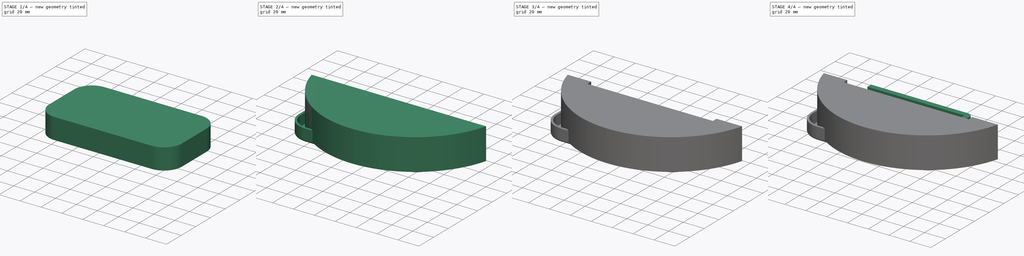
[diagram: build sequence overview — one tinted view per stage of 4, left to right]
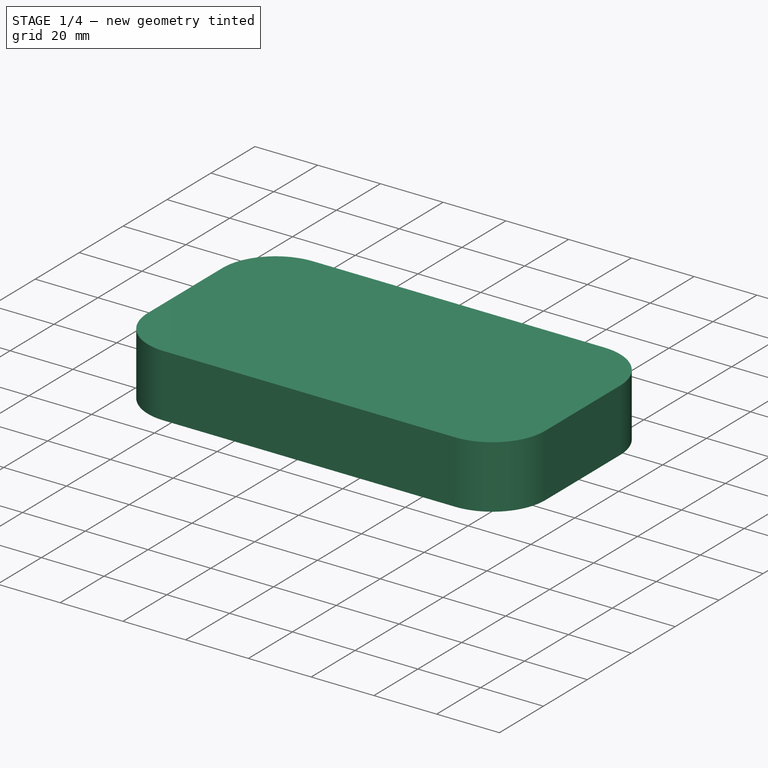
[diagram: stage 1 of 4 — iso view after this stage's code; geometry added in this stage tinted green]
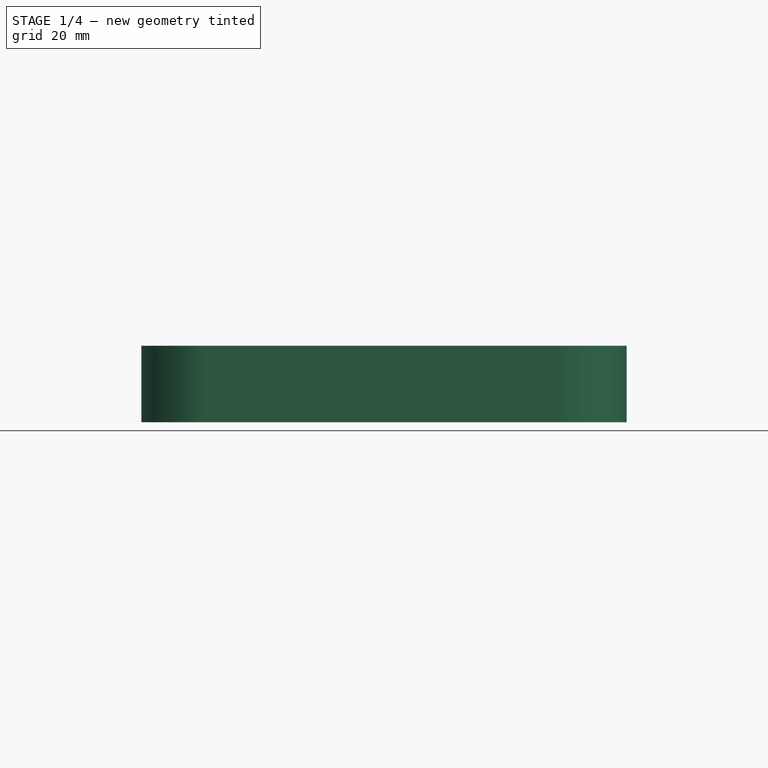
[diagram: stage 1 of 4 — front view after this stage's code; geometry added in this stage tinted green]
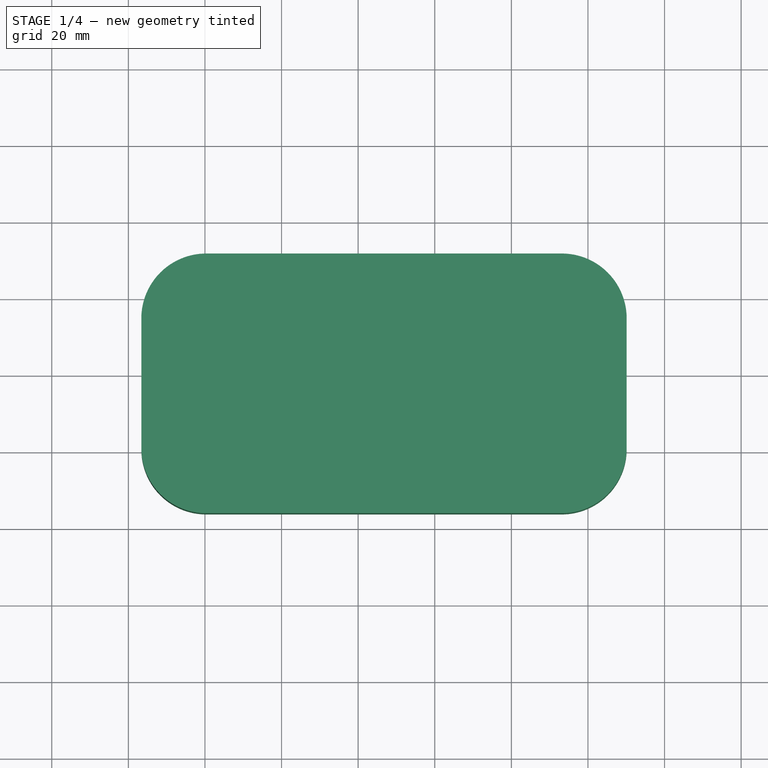
[diagram: stage 1 of 4 — top view after this stage's code; geometry added in this stage tinted green]
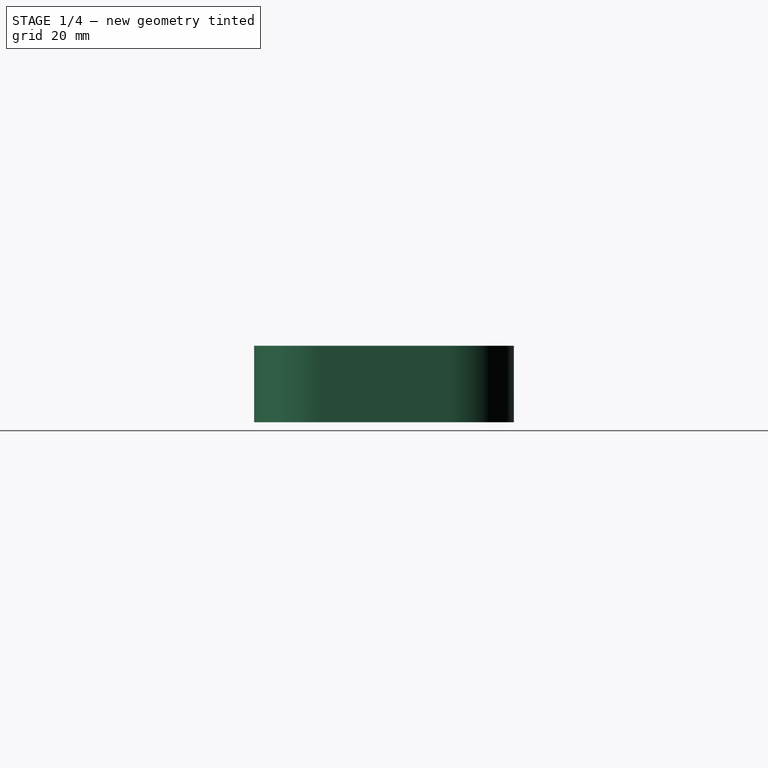
[diagram: stage 1 of 4 — right view after this stage's code; geometry added in this stage tinted green]
FCSTD DOCUMENT  (FreeCAD 0.21RUnknown)
Label: part27
License: All rights reserved
LicenseURL: http://en.wikipedia.org/wiki/All_rights_reserved
objects: PartDesign::Pad×7, Sketcher::SketchObject×5, PartDesign::Thickness×4, PartDesign::Body×4, PartDesign::Pocket×1, PartDesign::SubShapeBinder×1
note: 34 computed .brp shape members not serialized (recipe doc carries the construction recipe); baked Part::Feature solids carry a one-line shape summary decoded from their .brp

FEATURE [PartDesign::Body] Body001
  Group = -> [Sketch001,Pad002,Sketch002,Pocket,Sketch003,Pad003,Thickness001]
  Origin = -> Origin001
  Tip = -> Thickness001
FEATURE [Sketcher::SketchObject] Sketch004
  FullyConstrained = false
  MapMode = 5
  Support = -> [XY_Plane002]
  sketch-geometry (10):
    g0: ArcOfCircle CenterX=-39.6606 CenterY=14.7235 CenterZ=0 NormalX=0 NormalY=0 NormalZ=1 AngleXU=0 Radius=16.9513 StartAngle=1.5708 EndAngle=3.14159
    g1: LineSegment StartX=-39.6606 StartY=31.6748 StartZ=0 EndX=53.1625 EndY=31.6748 EndZ=0
    g2: ArcOfCircle CenterX=53.1625 CenterY=14.7235 CenterZ=0 NormalX=0 NormalY=0 NormalZ=1 AngleXU=0 Radius=16.9513 StartAngle=1e-16 EndAngle=1.5708
    g3: LineSegment StartX=70.1138 StartY=14.7235 StartZ=0 EndX=70.1138 EndY=-19.1792 EndZ=0
    g4: ArcOfCircle CenterX=53.1625 CenterY=-19.1792 CenterZ=0 NormalX=0 NormalY=0 NormalZ=1 AngleXU=0 Radius=16.9513 StartAngle=4.71239 EndAngle=6.28319
    g5: LineSegment StartX=53.1625 StartY=-36.1305 StartZ=0 EndX=-39.6606 EndY=-36.1305 EndZ=0
    g6: ArcOfCircle CenterX=-39.6606 CenterY=-19.1792 CenterZ=0 NormalX=0 NormalY=0 NormalZ=1 AngleXU=0 Radius=16.9513 StartAngle=3.14159 EndAngle=4.71239
    g7: LineSegment StartX=-56.612 StartY=-19.1792 StartZ=0 EndX=-56.612 EndY=14.7235 EndZ=0
    g8: GeomPoint X=-56.612 Y=31.6748 Z=0
    g9: GeomPoint X=70.1138 Y=-36.1305 Z=0
  constraints (19):
    c: Tangent(g0,g1) = 1.5708
    c: Tangent(g1,g2) = 1.5708
    c: Tangent(g2,g3) = 1.5708
    c: Tangent(g3,g4) = 1.5708
    c: Tangent(g4,g5) = 1.5708
    c: Tangent(g5,g6) = 1.5708
    c: Tangent(g6,g7) = 1.5708
    c: Tangent(g7,g0) = 1.5708
    c: Horizontal(g1)
    c: Horizontal(g5)
    c: Vertical(g3)
    c: Vertical(g7)
    c: Equal(g0,g2)
    c: Equal(g2,g4)
    c: Equal(g4,g6)
    c: PointOnObject(g8,g1)
    c: PointOnObject(g8,g7)
    c: PointOnObject(g9,g3)
    c: PointOnObject(g9,g5)
FEATURE [PartDesign::Pad] Pad004
  Direction = (0,0,1)
  Length = 20
  Length2 = 10
  Profile = -> Sketch004
  ReferenceAxis = -> Sketch004 [N_Axis]
  Type = 0
FEATURE [PartDesign::Thickness] Thickness002
  Base = -> Pad004 [Face9]
  BaseFeature = -> Pad004
  Intersection = false
  Join = 0
  Mode = 0
  Reversed = true
  SupportTransform = false
  Value = 2
FEATURE [PartDesign::Pad] Pad005
  BaseFeature = -> Thickness002
  Direction = (0,0,-1)
  Length = 2
  Length2 = 10
  Profile = -> Thickness002 [Face19]
  Type = 0
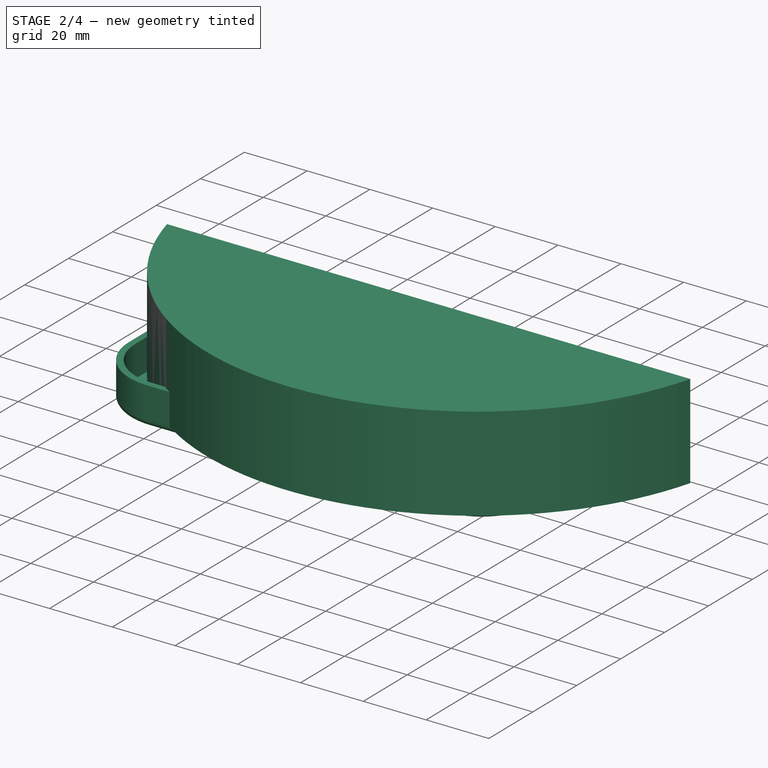
[diagram: stage 2 of 4 — iso view after this stage's code; geometry added in this stage tinted green]
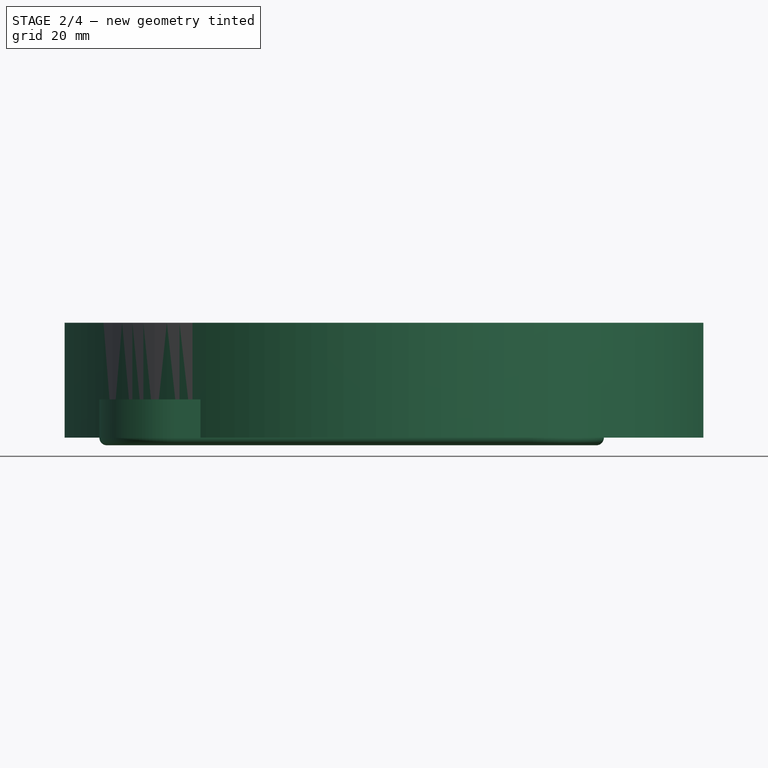
[diagram: stage 2 of 4 — front view after this stage's code; geometry added in this stage tinted green]
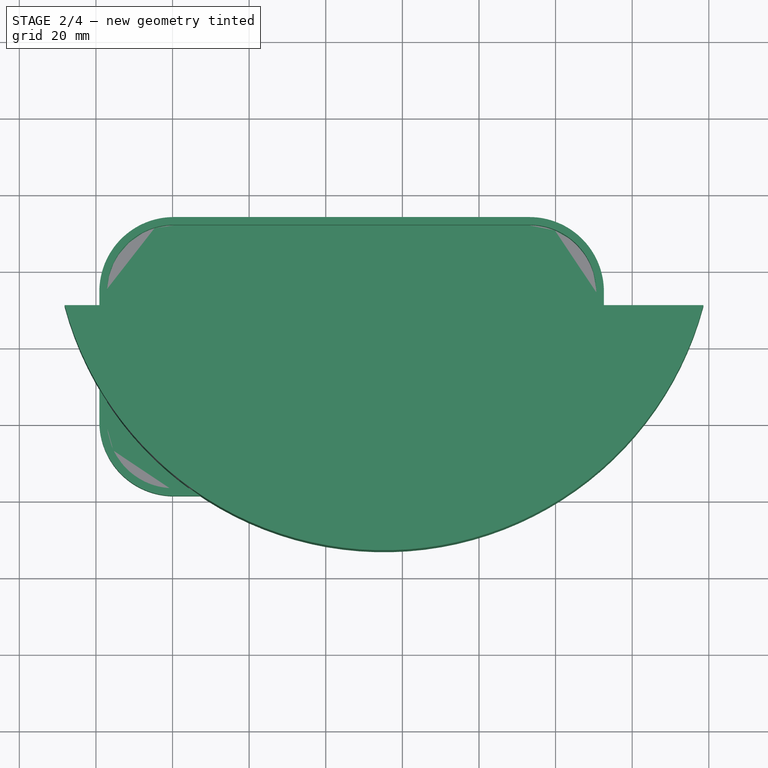
[diagram: stage 2 of 4 — top view after this stage's code; geometry added in this stage tinted green]
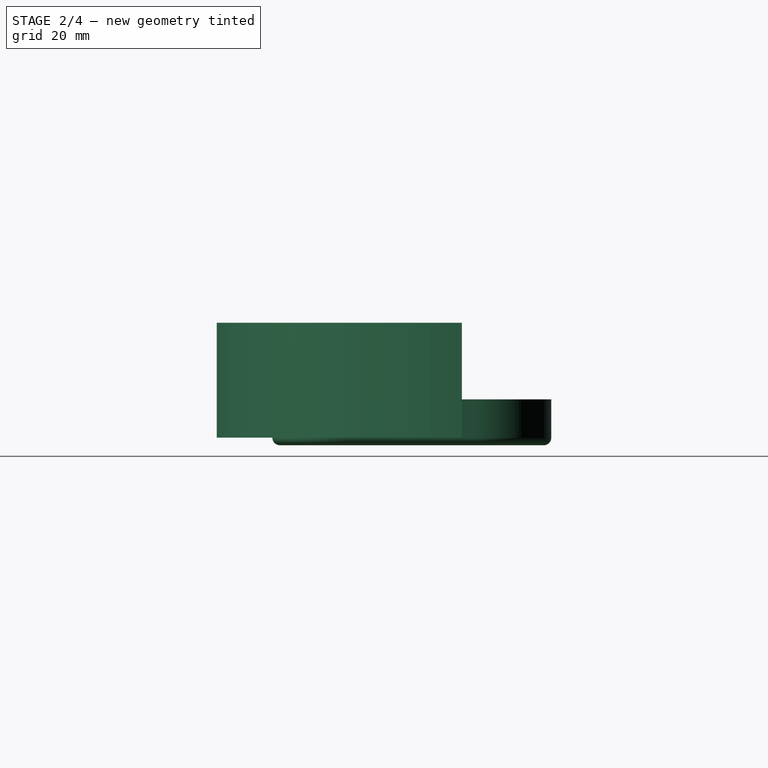
[diagram: stage 2 of 4 — right view after this stage's code; geometry added in this stage tinted green]
FEATURE [PartDesign::Body] Body
  Group = -> [Sketch,Pad,Thickness,Pad001]
  Origin = -> Origin
  Tip = -> Pad001
FEATURE [Sketcher::SketchObject] Sketch001
  FullyConstrained = false
  MapMode = 5
  Support = -> [XY_Plane001]
  sketch-geometry (2):
    g0: ArcOfCircle CenterX=15.2042 CenterY=33.144 CenterZ=0 NormalX=0 NormalY=0 NormalZ=1 AngleXU=0 Radius=86.3222 StartAngle=3.40304 EndAngle=6.02174
    g1: LineSegment StartX=-68.1844 StartY=10.8313 StartZ=0 EndX=98.5929 EndY=10.8313 EndZ=0
  constraints (3):
    c: Coincident(g1,g0)
    c: Coincident(g1,g0)
    c: Horizontal(g1)
FEATURE [PartDesign::Pad] Pad002
  Direction = (0,0,1)
  Length = 30
  Length2 = 10
  Profile = -> Sketch001
  ReferenceAxis = -> Sketch001 [N_Axis]
  Type = 0
FEATURE [PartDesign::Body] Body002  label="box lower"
  Group = -> [Sketch004,Pad004,Thickness002,Pad005]
  Origin = -> Origin002
  Tip = -> Pad005
FEATURE [PartDesign::SubShapeBinder] Binder
  BindCopyOnChange = 0
  BindMode = 0
  ClaimChildren = false
  Context = -> Body003 [Binder.]
  Fuse = false
  MakeFace = true
  Offset = 0.5
  OffsetFill = false
  OffsetIntersection = false
  OffsetJoinType = 0
  OffsetOpenResult = false
  PartialLoad = false
  Relative = true
  Support = -> [Body002[Pad004.Face9]]
  _Version = 2
FEATURE [PartDesign::Pad] Pad006
  Direction = (0,0,-1)
  Length = 10
  Length2 = 10
  Profile = -> Binder [Face1]
  Reversed = true
  Type = 0
FEATURE [PartDesign::Thickness] Thickness003
  Base = -> Pad006 [Face10]
  BaseFeature = -> Pad006
  Intersection = false
  Join = 0
  Mode = 0
  SupportTransform = false
  Value = 2
FEATURE [PartDesign::Body] Body003  label="box lid"
  Group = -> [Binder,Pad006,Thickness003]
  Origin = -> Origin003
  Tip = -> Thickness003
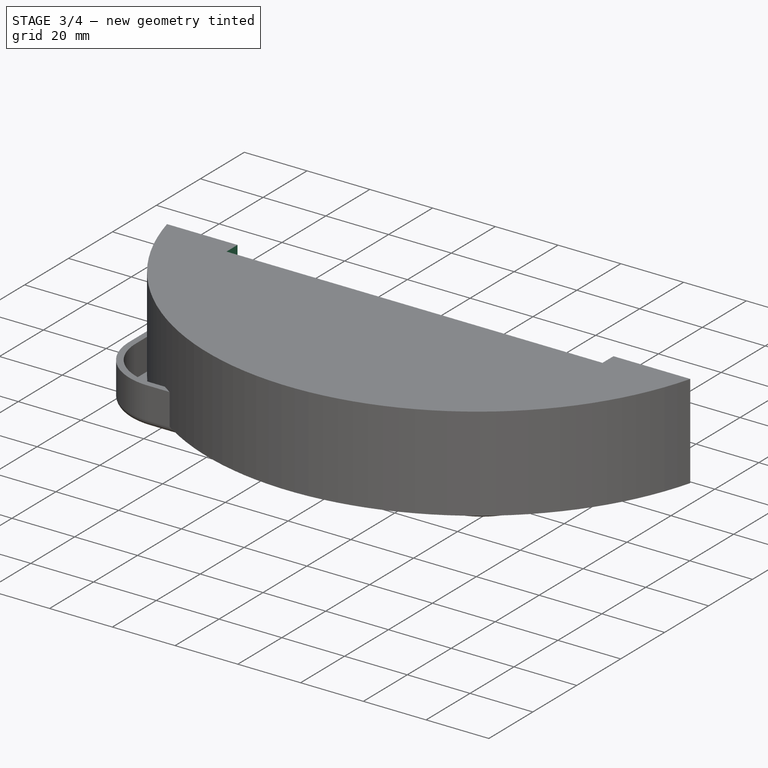
[diagram: stage 3 of 4 — iso view after this stage's code; geometry added in this stage tinted green]
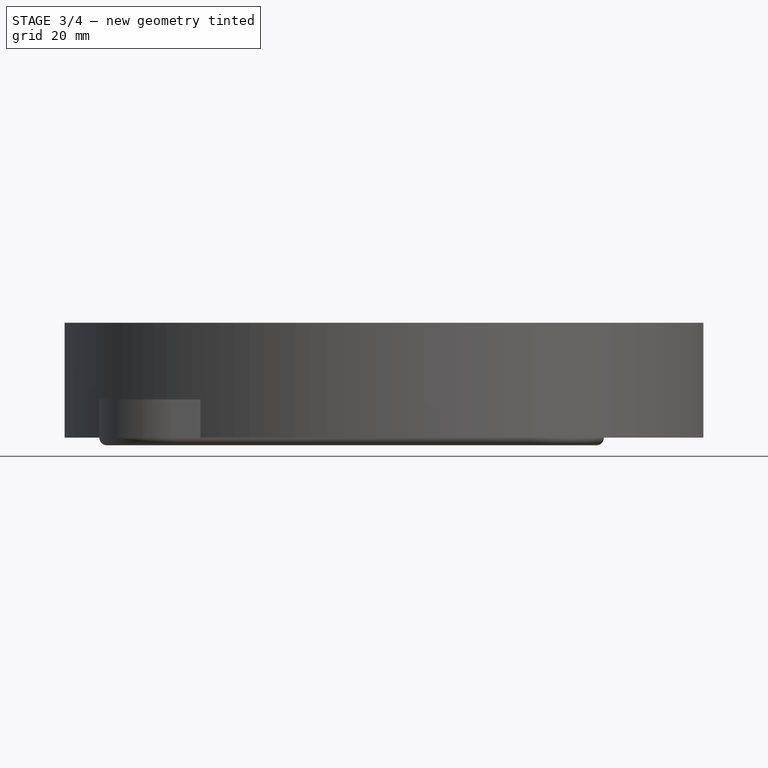
[diagram: stage 3 of 4 — front view after this stage's code; geometry added in this stage tinted green]
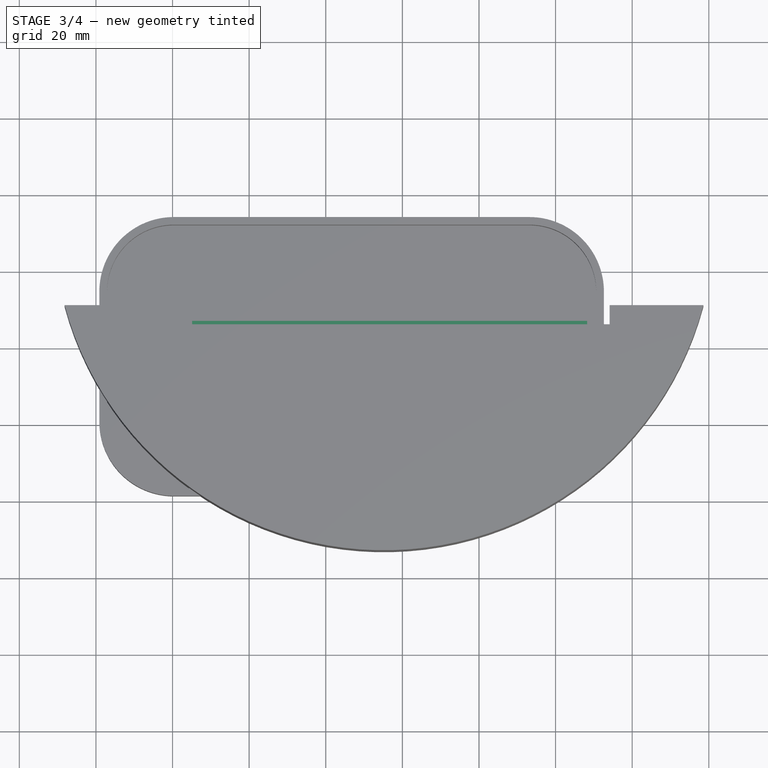
[diagram: stage 3 of 4 — top view after this stage's code; geometry added in this stage tinted green]
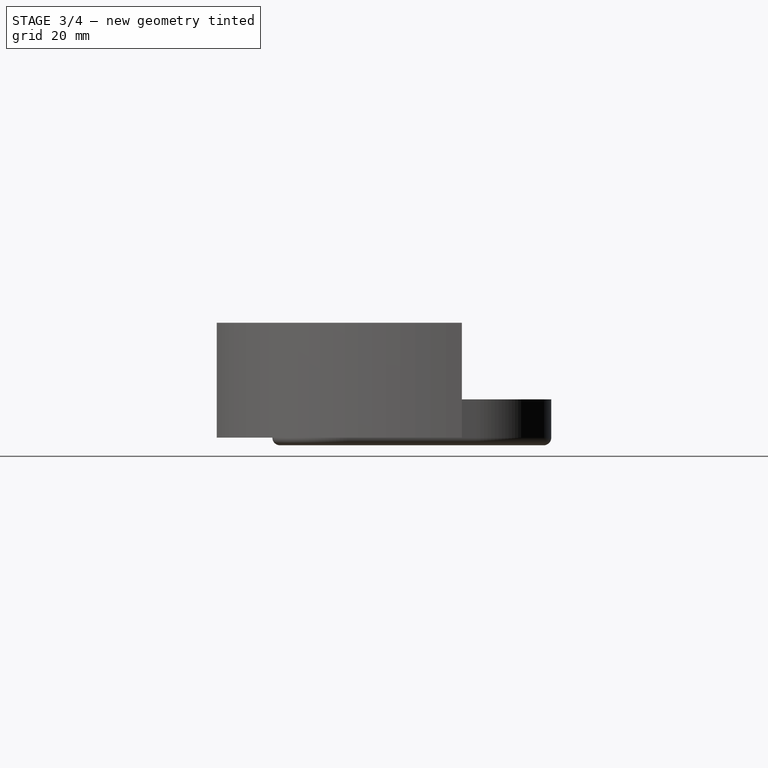
[diagram: stage 3 of 4 — right view after this stage's code; geometry added in this stage tinted green]
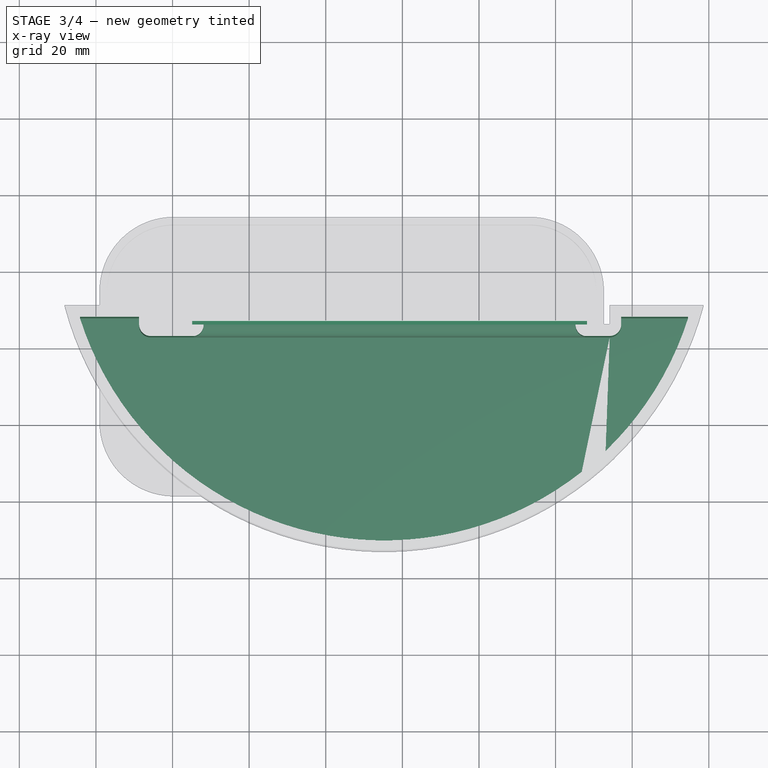
[diagram: stage 3 of 4 — x-ray composite at the top view; earlier geometry ghosted, this stage's added geometry solid]
FEATURE [Sketcher::SketchObject] Sketch002
  FullyConstrained = false
  MapMode = 5
  Placement = pos=(0,10.8313,0) rot=(0,0.707107,0.707107;3.14159rad)
  Support = -> [Pad002]
  sketch-geometry (4):
    g0: LineSegment StartX=-74.1139 StartY=44.8943 StartZ=0 EndX=45.7203 EndY=44.8943 EndZ=0
    g1: LineSegment StartX=45.7203 StartY=44.8943 StartZ=0 EndX=45.7203 EndY=-11.3857 EndZ=0
    g2: LineSegment StartX=45.7203 StartY=-11.3857 StartZ=0 EndX=-74.1139 EndY=-11.3857 EndZ=0
    g3: LineSegment StartX=-74.1139 StartY=-11.3857 StartZ=0 EndX=-74.1139 EndY=44.8943 EndZ=0
  constraints (8):
    c: Coincident(g0,g1)
    c: Coincident(g1,g2)
    c: Coincident(g2,g3)
    c: Coincident(g3,g0)
    c: Horizontal(g0)
    c: Horizontal(g2)
    c: Vertical(g1)
    c: Vertical(g3)
FEATURE [PartDesign::Pocket] Pocket
  BaseFeature = -> Pad002
  Direction = (0,-1,2e-16)
  Length = 5
  Length2 = 5
  Profile = -> Sketch002
  ReferenceAxis = -> Sketch002 [N_Axis]
  Type = 0
FEATURE [Sketcher::SketchObject] Sketch003
  FullyConstrained = false
  MapMode = 5
  Placement = pos=(0,5.83125,-1.3e-15) rot=(0,0.707107,0.707107;3.14159rad)
  Support = -> [Pocket]
  sketch-geometry (4):
    g0: LineSegment StartX=-68.2276 StartY=23.2454 StartZ=0 EndX=34.8996 EndY=23.2454 EndZ=0
    g1: LineSegment StartX=34.8996 StartY=23.2454 StartZ=0 EndX=34.8996 EndY=6.63219 EndZ=0
    g2: LineSegment StartX=34.8996 StartY=6.63219 StartZ=0 EndX=-68.2276 EndY=6.63219 EndZ=0
    g3: LineSegment StartX=-68.2276 StartY=6.63219 StartZ=0 EndX=-68.2276 EndY=23.2454 EndZ=0
  constraints (8):
    c: Coincident(g0,g1)
    c: Coincident(g1,g2)
    c: Coincident(g2,g3)
    c: Coincident(g3,g0)
    c: Horizontal(g0)
    c: Horizontal(g2)
    c: Vertical(g1)
    c: Vertical(g3)
FEATURE [PartDesign::Pad] Pad003
  BaseFeature = -> Pocket
  Direction = (0,1,-2e-16)
  Length = 1
  Length2 = 10
  Profile = -> Sketch003
  ReferenceAxis = -> Sketch003 [N_Axis]
  Type = 0
FEATURE [PartDesign::Thickness] Thickness001
  Base = -> Pad003 [Face13]
  BaseFeature = -> Pad003
  Intersection = false
  Join = 0
  Mode = 0
  Reversed = true
  SupportTransform = false
  Value = 3
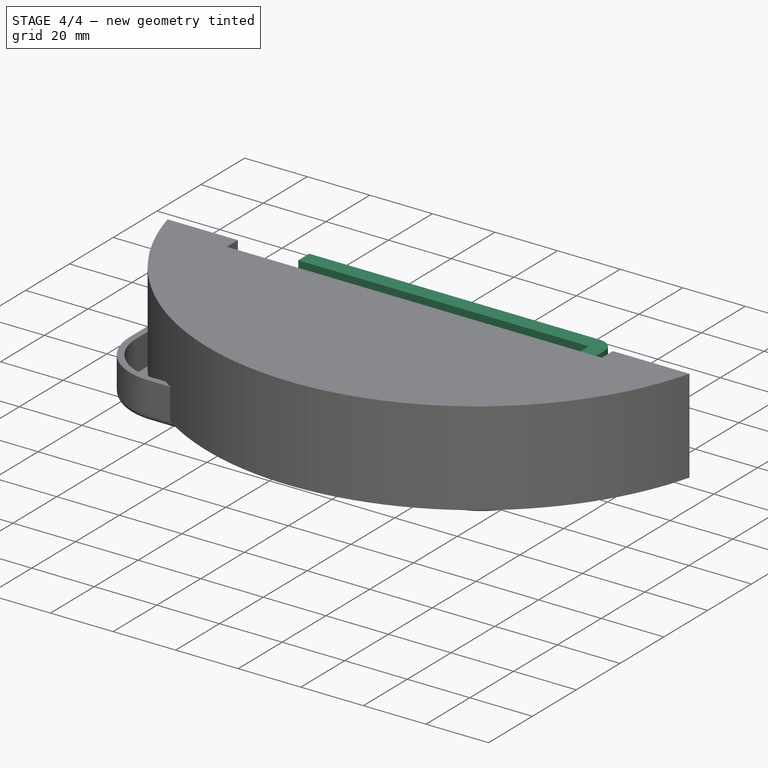
[diagram: stage 4 of 4 — iso view after this stage's code; geometry added in this stage tinted green]
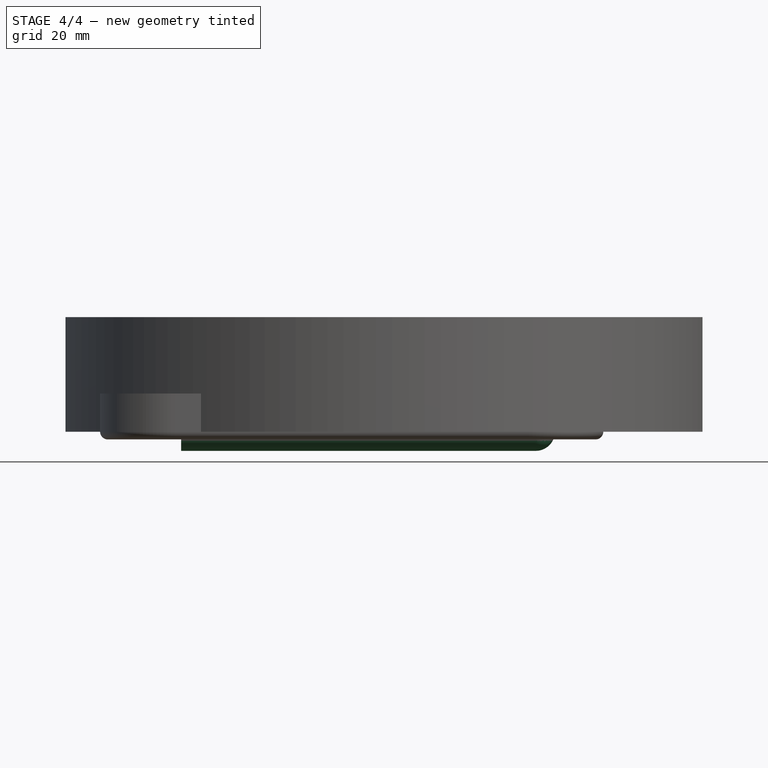
[diagram: stage 4 of 4 — front view after this stage's code; geometry added in this stage tinted green]
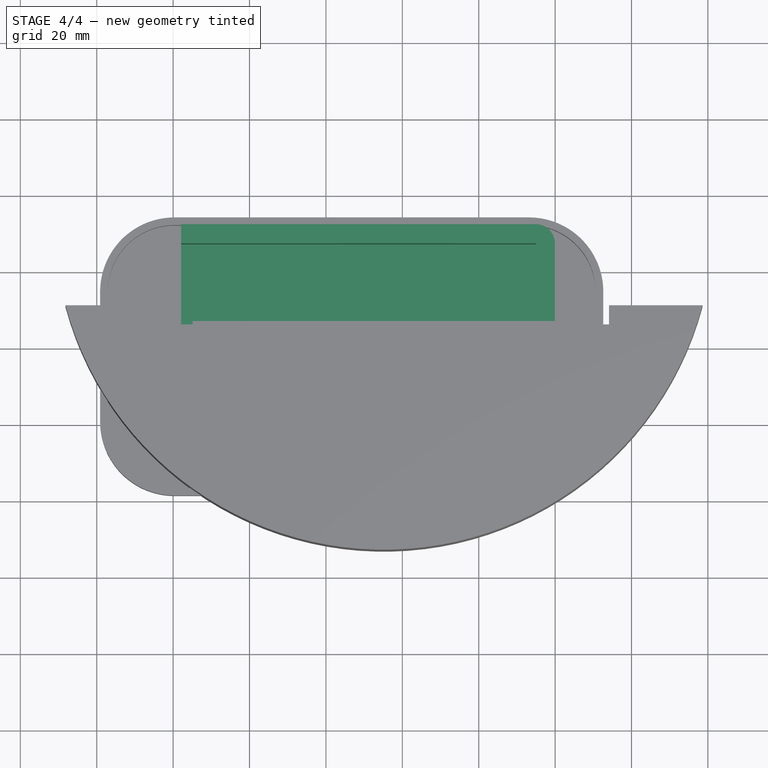
[diagram: stage 4 of 4 — top view after this stage's code; geometry added in this stage tinted green]
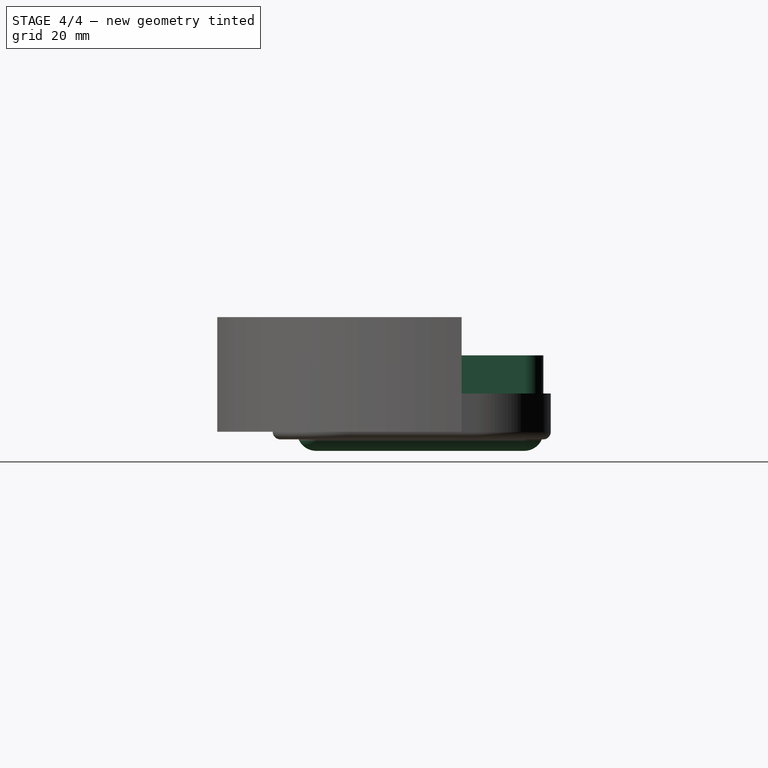
[diagram: stage 4 of 4 — right view after this stage's code; geometry added in this stage tinted green]
FEATURE [Sketcher::SketchObject] Sketch
  FullyConstrained = false
  MapMode = 5
  Support = -> [XY_Plane]
  sketch-geometry (4):
    g0: LineSegment StartX=-37.9172 StartY=27.2329 StartZ=0 EndX=54.9411 EndY=27.2329 EndZ=0
    g1: LineSegment StartX=54.9411 StartY=27.2329 StartZ=0 EndX=54.9411 EndY=-27.2421 EndZ=0
    g2: LineSegment StartX=54.9411 StartY=-27.2421 StartZ=0 EndX=-37.9172 EndY=-27.2421 EndZ=0
    g3: LineSegment StartX=-37.9172 StartY=-27.2421 StartZ=0 EndX=-37.9172 EndY=27.2329 EndZ=0
  constraints (8):
    c: Coincident(g0,g1)
    c: Coincident(g1,g2)
    c: Coincident(g2,g3)
    c: Coincident(g3,g0)
    c: Horizontal(g0)
    c: Horizontal(g2)
    c: Vertical(g1)
    c: Vertical(g3)
FEATURE [PartDesign::Pad] Pad
  Direction = (0,0,1)
  Length = 20
  Length2 = 10
  Profile = -> Sketch
  ReferenceAxis = -> Sketch [N_Axis]
  Type = 0
FEATURE [PartDesign::Thickness] Thickness
  Base = -> Pad [Face6,Face4]
  BaseFeature = -> Pad
  Intersection = false
  Join = 0
  Mode = 0
  SupportTransform = false
  Value = 5
FEATURE [PartDesign::Pad] Pad001
  BaseFeature = -> Thickness
  Direction = (0,0,1)
  Length = 2
  Length2 = 10
  Profile = -> Thickness [Face4]
  Refine = true
  Type = 0
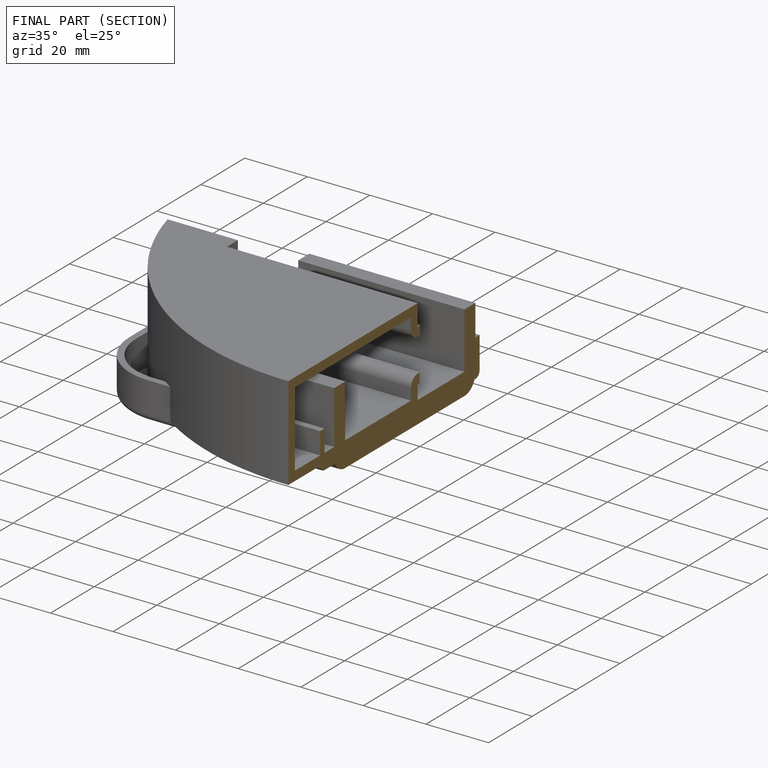
[diagram: finished part — half-section view (interior)]
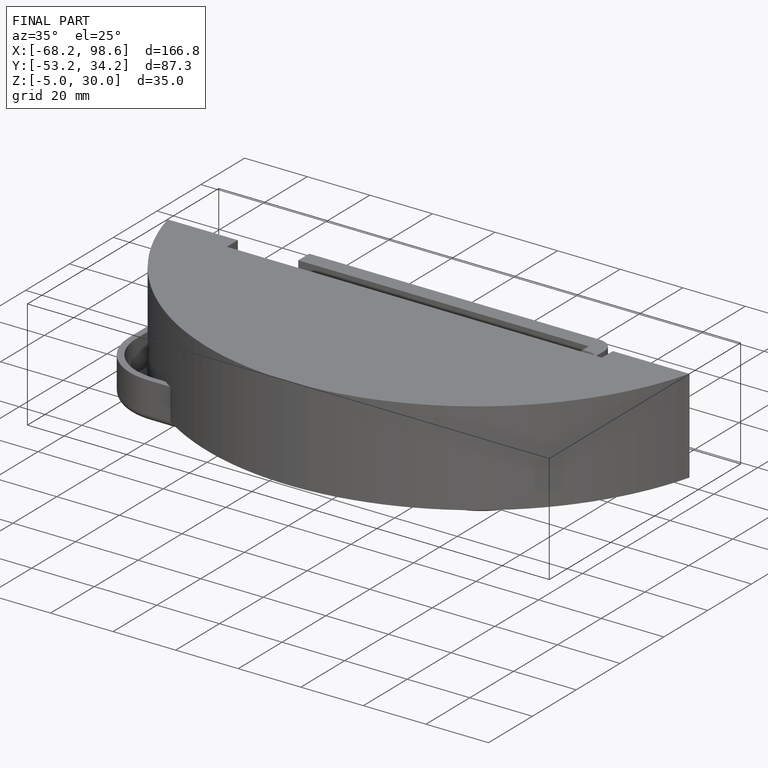
[diagram: finished part — iso view with bounding-box wireframe]
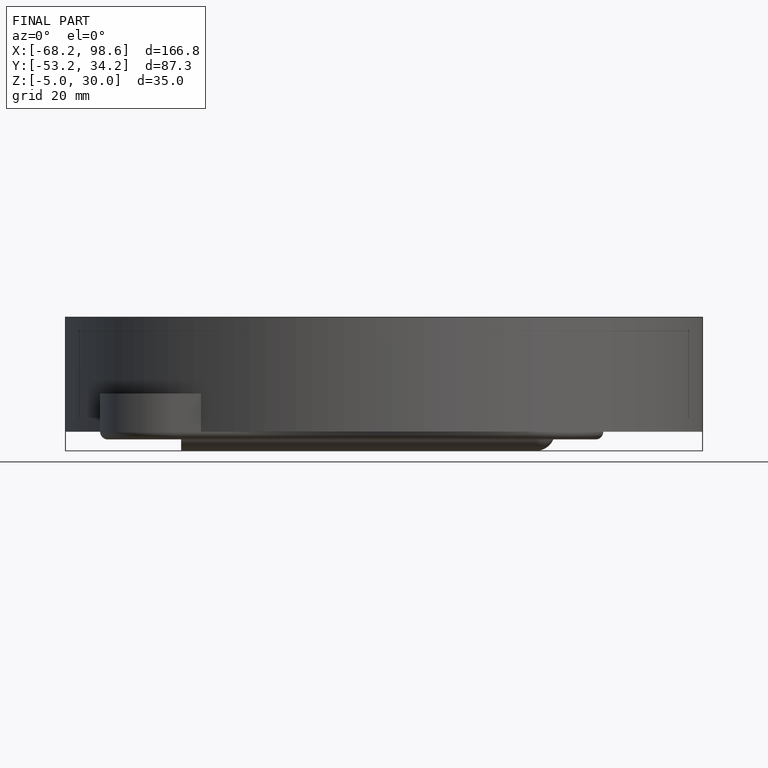
[diagram: finished part — front view with bounding-box wireframe]
